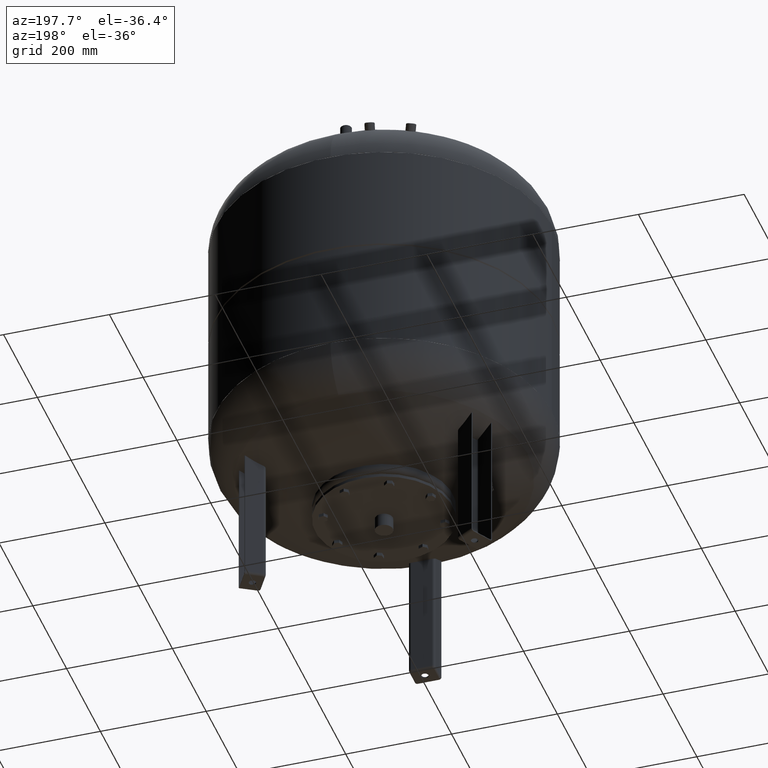
[diagram: clean part render]
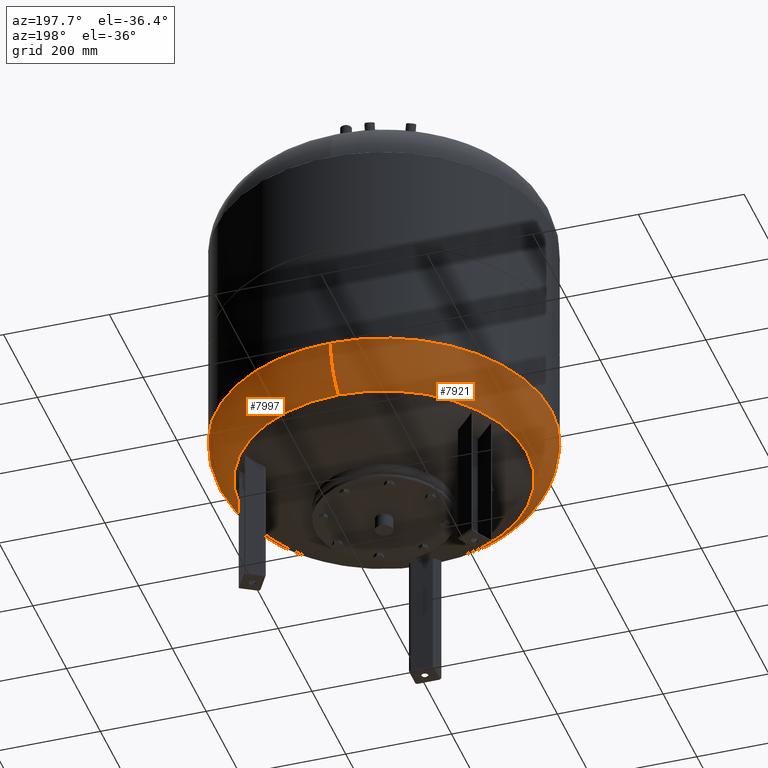
[diagram: same view with one multi-face feature highlighted, each face labeled with its STEP entity id]
A machine part, auxiliary view. The highlighted faces form ONE feature: a constant-radius fillet chain: 2 tangent blend faces with common blend radius 99 mm. The faces share edges in the B-rep.
Their STEP definitions:
[1] entity #7921 (Torus):
#7826=CARTESIAN_POINT('',(-317.000000000000060,-2.971473E-014,351.759449372628580));
#7827=VERTEX_POINT('',#7826);
#7851=CARTESIAN_POINT('',(-3.882002E-014,317.0,351.759449372628690));
#7852=VERTEX_POINT('',#7851);
#7860=CARTESIAN_POINT('',(-1.556097E-014,-2.971473E-014,351.759449372628640));
#7861=DIRECTION('',(0.0,0.0,1.0));
#7862=DIRECTION('',(-1.0,0.0,0.0));
#7863=AXIS2_PLACEMENT_3D('',#7860,#7861,#7862);
#7864=CIRCLE('',#7863,317.000000000000060);
#7865=EDGE_CURVE('',#7852,#7827,#7864,.T.);
#7870=CARTESIAN_POINT('',(0.0,-2.971473E-014,351.759449372628640));
#7871=DIRECTION('',(-9.619823E-017,-1.836970E-016,1.0));
#7872=DIRECTION('',(0.0,-1.0,0.0));
#7873=AXIS2_PLACEMENT_3D('',#7870,#7871,#7872);
#7874=TOROIDAL_SURFACE('',#7873,218.0,99.0);
#7875=CARTESIAN_POINT('',(-3.021869E-030,-317.000000000000110,351.759449372628580));
#7876=VERTEX_POINT('',#7875);
#7877=CARTESIAN_POINT('',(8.065826E-015,-270.639024390243830,267.913560318702370));
#7878=VERTEX_POINT('',#7877);
#7879=CARTESIAN_POINT('',(0.0,-218.000000000000030,351.759449372628580));
#7880=DIRECTION('',(1.0,0.0,0.0));
#7881=DIRECTION('',(0.0,-1.0,0.0));
#7882=AXIS2_PLACEMENT_3D('',#7879,#7880,#7881);
#7883=CIRCLE('',#7882,99.0);
#7884=EDGE_CURVE('',#7876,#7878,#7883,.T.);
#7885=ORIENTED_EDGE('',*,*,#7884,.F.);
#7886=CARTESIAN_POINT('',(-1.556097E-014,-2.971473E-014,351.759449372628640));
#7887=DIRECTION('',(0.0,0.0,1.0));
#7888=DIRECTION('',(-1.0,0.0,0.0));
#7889=AXIS2_PLACEMENT_3D('',#7886,#7887,#7888);
#7890=CIRCLE('',#7889,317.000000000000060);
#7891=EDGE_CURVE('',#7827,#7876,#7890,.T.);
#7892=ORIENTED_EDGE('',*,*,#7891,.F.);
#7893=ORIENTED_EDGE('',*,*,#7865,.F.);
#7894=CARTESIAN_POINT('',(-2.507680E-014,270.639024390243830,267.913560318702480));
#7895=VERTEX_POINT('',#7894);
#7896=CARTESIAN_POINT('',(-2.669642E-014,217.999999999999970,351.759449372628690));
#7897=DIRECTION('',(-1.0,0.0,0.0));
#7898=DIRECTION('',(0.0,1.0,0.0));
#7899=AXIS2_PLACEMENT_3D('',#7896,#7897,#7898);
#7900=CIRCLE('',#7899,99.0);
#7901=EDGE_CURVE('',#7852,#7895,#7900,.T.);
#7902=ORIENTED_EDGE('',*,*,#7901,.T.);
#7903=CARTESIAN_POINT('',(-270.639024390243830,-1.431249E-014,267.913560318702420));
#7904=VERTEX_POINT('',#7903);
#7905=CARTESIAN_POINT('',(-7.495146E-015,-1.431249E-014,267.913560318702420));
#7906=DIRECTION('',(0.0,0.0,1.0));
#7907=DIRECTION('',(-1.0,0.0,0.0));
#7908=AXIS2_PLACEMENT_3D('',#7905,#7906,#7907);
#7909=CIRCLE('',#7908,270.639024390243830);
#7910=EDGE_CURVE('',#7895,#7904,#7909,.T.);
#7911=ORIENTED_EDGE('',*,*,#7910,.T.);
#7912=CARTESIAN_POINT('',(-7.495146E-015,-1.431249E-014,267.913560318702420));
#7913=DIRECTION('',(0.0,0.0,1.0));
#7914=DIRECTION('',(-1.0,0.0,0.0));
#7915=AXIS2_PLACEMENT_3D('',#7912,#7913,#7914);
#7916=CIRCLE('',#7915,270.639024390243830);
#7917=EDGE_CURVE('',#7904,#7878,#7916,.T.);
#7918=ORIENTED_EDGE('',*,*,#7917,.T.);
#7919=EDGE_LOOP('',(#7885,#7892,#7893,#7902,#7911,#7918));
#7920=FACE_OUTER_BOUND('',#7919,.T.);
#7921=ADVANCED_FACE('',(#7920),#7874,.T.);
[2] entity #7997 (Torus):
#7843=CARTESIAN_POINT('',(317.0,9.105293E-015,351.759449372628640));
#7844=VERTEX_POINT('',#7843);
#7851=CARTESIAN_POINT('',(-3.882002E-014,317.0,351.759449372628690));
#7852=VERTEX_POINT('',#7851);
#7853=CARTESIAN_POINT('',(-1.556097E-014,-2.971473E-014,351.759449372628640));
#7854=DIRECTION('',(0.0,0.0,1.0));
#7855=DIRECTION('',(-1.0,0.0,0.0));
#7856=AXIS2_PLACEMENT_3D('',#7853,#7854,#7855);
#7857=CIRCLE('',#7856,317.000000000000060);
#7858=EDGE_CURVE('',#7844,#7852,#7857,.T.);
#7875=CARTESIAN_POINT('',(-3.021869E-030,-317.000000000000110,351.759449372628580));
#7876=VERTEX_POINT('',#7875);
#7877=CARTESIAN_POINT('',(8.065826E-015,-270.639024390243830,267.913560318702370));
#7878=VERTEX_POINT('',#7877);
#7879=CARTESIAN_POINT('',(0.0,-218.000000000000030,351.759449372628580));
#7880=DIRECTION('',(1.0,0.0,0.0));
#7881=DIRECTION('',(0.0,-1.0,0.0));
#7882=AXIS2_PLACEMENT_3D('',#7879,#7880,#7881);
#7883=CIRCLE('',#7882,99.0);
#7884=EDGE_CURVE('',#7876,#7878,#7883,.T.);
#7894=CARTESIAN_POINT('',(-2.507680E-014,270.639024390243830,267.913560318702480));
#7895=VERTEX_POINT('',#7894);
#7896=CARTESIAN_POINT('',(-2.669642E-014,217.999999999999970,351.759449372628690));
#7897=DIRECTION('',(-1.0,0.0,0.0));
#7898=DIRECTION('',(0.0,1.0,0.0));
#7899=AXIS2_PLACEMENT_3D('',#7896,#7897,#7898);
#7900=CIRCLE('',#7899,99.0);
#7901=EDGE_CURVE('',#7852,#7895,#7900,.T.);
#7929=CARTESIAN_POINT('',(-7.495146E-015,-1.431249E-014,267.913560318702420));
#7930=DIRECTION('',(0.0,0.0,1.0));
#7931=DIRECTION('',(-1.0,0.0,0.0));
#7932=AXIS2_PLACEMENT_3D('',#7929,#7930,#7931);
#7933=CIRCLE('',#7932,270.639024390243830);
#7934=EDGE_CURVE('',#7878,#7895,#7933,.T.);
#7979=CARTESIAN_POINT('',(0.0,-2.971473E-014,351.759449372628640));
#7980=DIRECTION('',(-9.619823E-017,-1.836970E-016,1.0));
#7981=DIRECTION('',(0.0,-1.0,0.0));
#7982=AXIS2_PLACEMENT_3D('',#7979,#7980,#7981);
#7983=TOROIDAL_SURFACE('',#7982,218.0,99.0);
#7984=ORIENTED_EDGE('',*,*,#7884,.T.);
#7985=ORIENTED_EDGE('',*,*,#7934,.T.);
#7986=ORIENTED_EDGE('',*,*,#7901,.F.);
#7987=ORIENTED_EDGE('',*,*,#7858,.F.);
#7988=CARTESIAN_POINT('',(-1.556097E-014,-2.971473E-014,351.759449372628640));
#7989=DIRECTION('',(0.0,0.0,1.0));
#7990=DIRECTION('',(-1.0,0.0,0.0));
#7991=AXIS2_PLACEMENT_3D('',#7988,#7989,#7990);
#7992=CIRCLE('',#7991,317.000000000000060);
#7993=EDGE_CURVE('',#7876,#7844,#7992,.T.);
#7994=ORIENTED_EDGE('',*,*,#7993,.F.);
#7995=EDGE_LOOP('',(#7984,#7985,#7986,#7987,#7994));
#7996=FACE_OUTER_BOUND('',#7995,.T.);
#7997=ADVANCED_FACE('',(#7996),#7983,.T.);